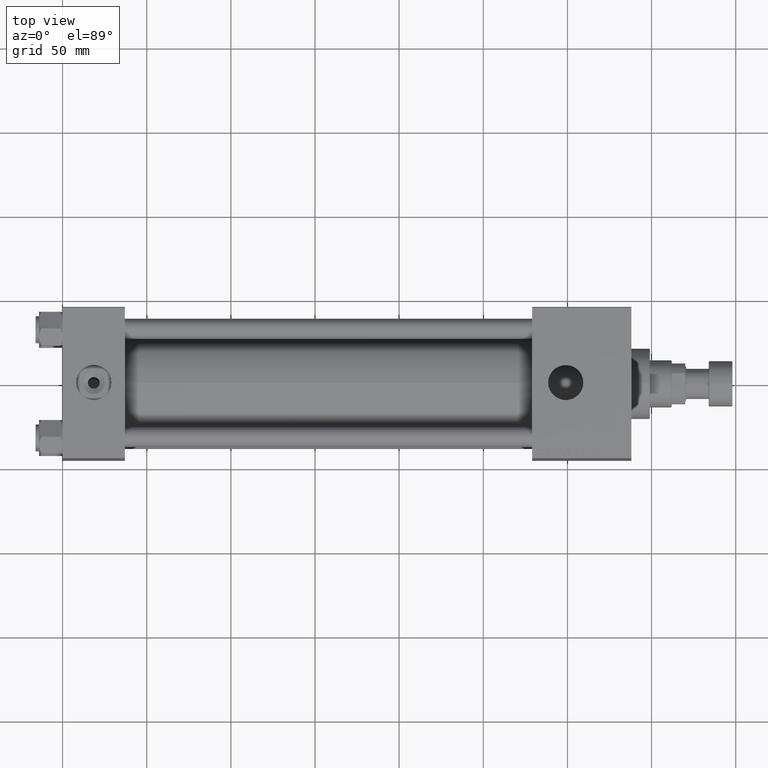
[diagram: clean part render]
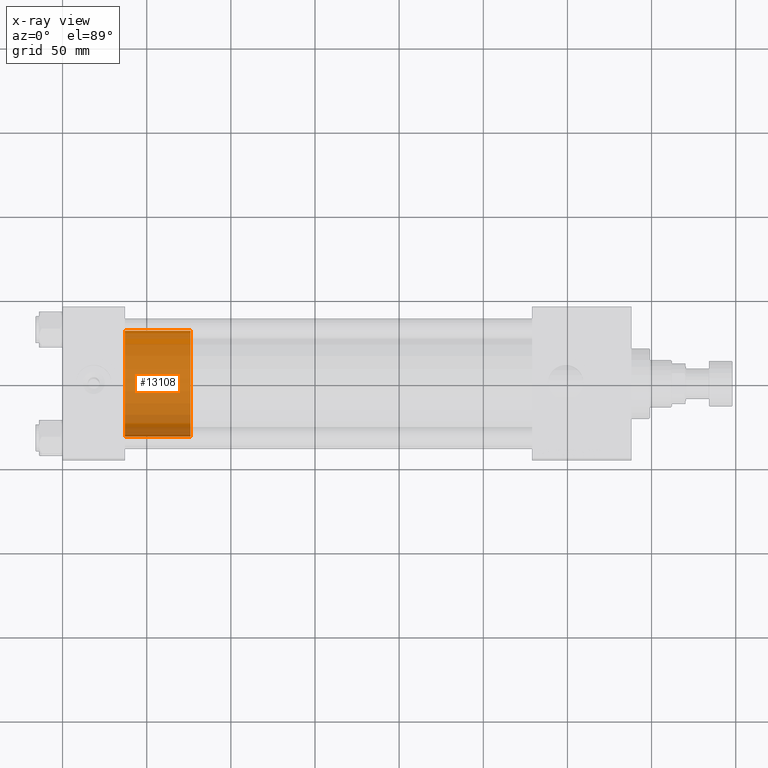
[diagram: x-ray — body ghosted, one internal face saturated and labeled with its STEP entity id]
A machine part, top view, then the same camera in x-ray: the body is ghosted and one INTERNAL B-rep face — a face not visible from any outside direction — is saturated and labeled: STEP entity #13108.
In plain terms, the highlighted cylindrical surface (partial cylindrical patch) has radius 31.5 mm, axis along (-1, 0, 0).
Its self-contained STEP definition (entity closure, byte-faithful):
#867 = EDGE_CURVE ( 'NONE', #51853, #19655, #27930, .T. ) ;
#4207 = CARTESIAN_POINT ( 'NONE',  ( 31.50000000000000000, 3.857637417314162689E-15, 0.000000000000000000 ) ) ;
#6574 = DIRECTION ( 'NONE',  ( 1.000000000000000000, 0.000000000000000000, 0.000000000000000000 ) ) ;
#6651 = CARTESIAN_POINT ( 'NONE',  ( -31.50000000000000000, 0.000000000000000000, 0.000000000000000000 ) ) ;
#6715 = FACE_OUTER_BOUND ( 'NONE', #43298, .T. ) ;
#7729 = CARTESIAN_POINT ( 'NONE',  ( 31.50000000000000000, 3.857637417314162689E-15, 39.00000000000000000 ) ) ;
#8091 = CIRCLE ( 'NONE', #15745, 31.50000000000000000 ) ;
#9572 = ORIENTED_EDGE ( 'NONE', *, *, #867, .F. ) ;
#9805 = DIRECTION ( 'NONE',  ( -0.000000000000000000, -0.000000000000000000, -1.000000000000000000 ) ) ;
#10973 = CYLINDRICAL_SURFACE ( 'NONE', #16312, 31.50000000000000000 ) ;
#13108 = ADVANCED_FACE ( 'NONE', ( #6715 ), #10973, .T. ) ;
#13966 = LINE ( 'NONE', #42256, #42843 ) ;
#15745 = AXIS2_PLACEMENT_3D ( 'NONE', #30612, #43397, #6574 ) ;
#16280 = EDGE_CURVE ( 'NONE', #51853, #36231, #13966, .T. ) ;
#16312 = AXIS2_PLACEMENT_3D ( 'NONE', #27284, #9805, #50068 ) ;
#18467 = ORIENTED_EDGE ( 'NONE', *, *, #30918, .F. ) ;
#18531 = DIRECTION ( 'NONE',  ( 1.000000000000000000, 0.000000000000000000, 0.000000000000000000 ) ) ;
#19655 = VERTEX_POINT ( 'NONE', #24087 ) ;
#23067 = CARTESIAN_POINT ( 'NONE',  ( 0.000000000000000000, 0.000000000000000000, 39.00000000000000000 ) ) ;
#24087 = CARTESIAN_POINT ( 'NONE',  ( -31.50000000000000000, 0.000000000000000000, 39.00000000000000000 ) ) ;
#27284 = CARTESIAN_POINT ( 'NONE',  ( 0.000000000000000000, 0.000000000000000000, 39.00000000000000000 ) ) ;
#27930 = CIRCLE ( 'NONE', #52619, 31.50000000000000000 ) ;
#30612 = CARTESIAN_POINT ( 'NONE',  ( 0.000000000000000000, 0.000000000000000000, 0.000000000000000000 ) ) ;
#30796 = VERTEX_POINT ( 'NONE', #6651 ) ;
#30918 = EDGE_CURVE ( 'NONE', #19655, #30796, #49568, .T. ) ;
#31420 = VECTOR ( 'NONE', #42362, 1000.000000000000000 ) ;
#34796 = DIRECTION ( 'NONE',  ( 0.000000000000000000, 0.000000000000000000, 1.000000000000000000 ) ) ;
#36231 = VERTEX_POINT ( 'NONE', #4207 ) ;
#38105 = CARTESIAN_POINT ( 'NONE',  ( -31.50000000000000000, 0.000000000000000000, 39.00000000000000000 ) ) ;
#42256 = CARTESIAN_POINT ( 'NONE',  ( 31.50000000000000000, 3.857637417314162689E-15, 39.00000000000000000 ) ) ;
#42362 = DIRECTION ( 'NONE',  ( -0.000000000000000000, -0.000000000000000000, -1.000000000000000000 ) ) ;
#42843 = VECTOR ( 'NONE', #51296, 1000.000000000000000 ) ;
#43298 = EDGE_LOOP ( 'NONE', ( #9572, #49003, #49866, #18467 ) ) ;
#43397 = DIRECTION ( 'NONE',  ( 0.000000000000000000, 0.000000000000000000, 1.000000000000000000 ) ) ;
#49003 = ORIENTED_EDGE ( 'NONE', *, *, #16280, .T. ) ;
#49113 = EDGE_CURVE ( 'NONE', #36231, #30796, #8091, .T. ) ;
#49568 = LINE ( 'NONE', #38105, #31420 ) ;
#49866 = ORIENTED_EDGE ( 'NONE', *, *, #49113, .T. ) ;
#50068 = DIRECTION ( 'NONE',  ( -1.000000000000000000, 0.000000000000000000, 0.000000000000000000 ) ) ;
#51296 = DIRECTION ( 'NONE',  ( -0.000000000000000000, -0.000000000000000000, -1.000000000000000000 ) ) ;
#51853 = VERTEX_POINT ( 'NONE', #7729 ) ;
#52619 = AXIS2_PLACEMENT_3D ( 'NONE', #23067, #34796, #18531 ) ;